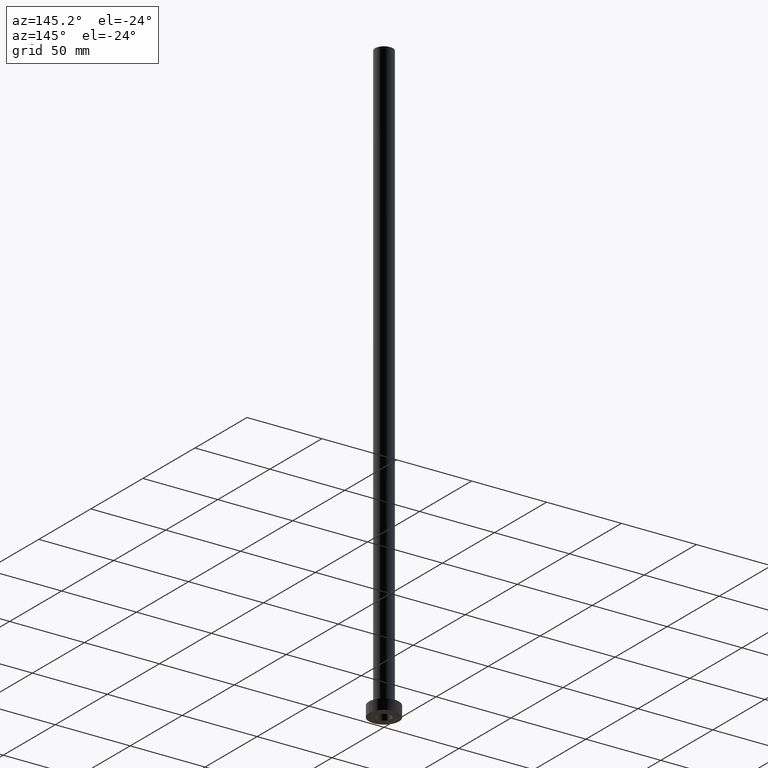
[diagram: clean part render]
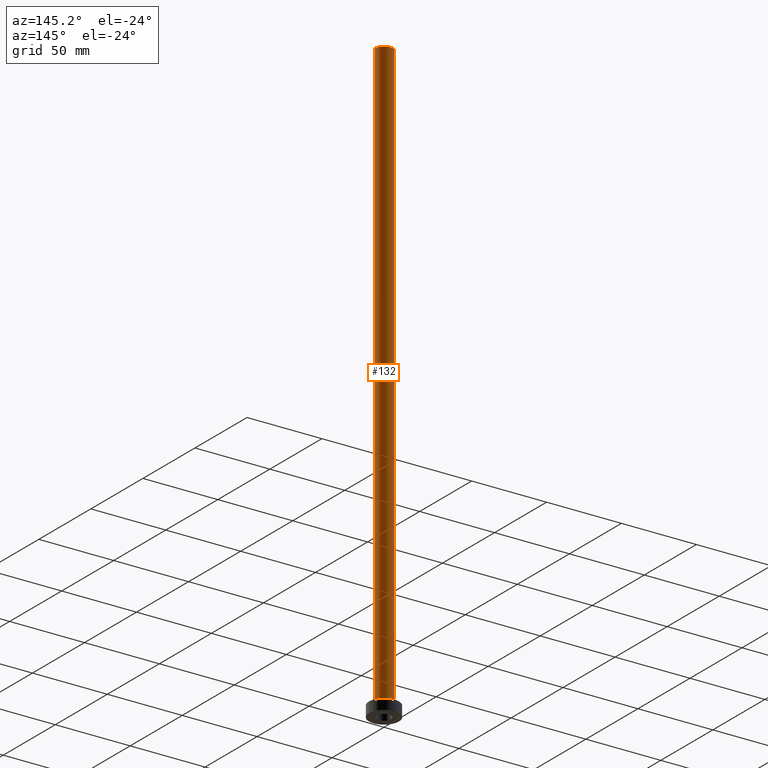
[diagram: same view with one face highlighted and labeled with its STEP entity id]
A machine part, auxiliary view. The second image highlights one B-rep face of the part: STEP entity #132.
In plain terms, the highlighted cylindrical surface (edge-blend (fillet) strip) has radius 6 mm, axis along (-0, -0, -1).
Its self-contained STEP definition (entity closure, byte-faithful):
#3 = EDGE_CURVE ( 'NONE', #295, #27, #314, .T. ) ;
#7 = DIRECTION ( 'NONE',  ( 1.000000000000000000, 0.000000000000000000, 0.000000000000000000 ) ) ;
#27 = VERTEX_POINT ( 'NONE', #184 ) ;
#49 = EDGE_CURVE ( 'NONE', #362, #295, #259, .T. ) ;
#61 = AXIS2_PLACEMENT_3D ( 'NONE', #199, #335, #7 ) ;
#69 = ORIENTED_EDGE ( 'NONE', *, *, #247, .F. ) ;
#88 = EDGE_CURVE ( 'NONE', #362, #122, #364, .T. ) ;
#97 = CARTESIAN_POINT ( 'NONE',  ( 0.000000000000000000, 0.000000000000000000, 400.0000000000000000 ) ) ;
#122 = VERTEX_POINT ( 'NONE', #379 ) ;
#128 = VECTOR ( 'NONE', #273, 1000.000000000000000 ) ;
#131 = CARTESIAN_POINT ( 'NONE',  ( -6.000000000000000888, 0.000000000000000000, 400.0000000000000000 ) ) ;
#132 = ADVANCED_FACE ( 'NONE', ( #446 ), #206, .T. ) ;
#138 = CARTESIAN_POINT ( 'NONE',  ( 0.000000000000000000, 0.000000000000000000, 400.0000000000000000 ) ) ;
#150 = CARTESIAN_POINT ( 'NONE',  ( 6.000000000000000888, 7.347880794884120722E-16, 400.0000000000000000 ) ) ;
#174 = DIRECTION ( 'NONE',  ( 0.000000000000000000, 0.000000000000000000, 1.000000000000000000 ) ) ;
#184 = CARTESIAN_POINT ( 'NONE',  ( -6.000000000000000888, 0.000000000000000000, 7.699999999999985079 ) ) ;
#190 = ORIENTED_EDGE ( 'NONE', *, *, #88, .F. ) ;
#199 = CARTESIAN_POINT ( 'NONE',  ( 0.000000000000000000, 0.000000000000000000, 7.699999999999985079 ) ) ;
#206 = CYLINDRICAL_SURFACE ( 'NONE', #388, 6.000000000000000888 ) ;
#222 = CARTESIAN_POINT ( 'NONE',  ( 6.000000000000000888, 7.347880794884120722E-16, 400.0000000000000000 ) ) ;
#247 = EDGE_CURVE ( 'NONE', #122, #27, #303, .T. ) ;
#258 = AXIS2_PLACEMENT_3D ( 'NONE', #97, #174, #415 ) ;
#259 = LINE ( 'NONE', #222, #411 ) ;
#261 = EDGE_LOOP ( 'NONE', ( #190, #416, #458, #69 ) ) ;
#273 = DIRECTION ( 'NONE',  ( -0.000000000000000000, -0.000000000000000000, -1.000000000000000000 ) ) ;
#295 = VERTEX_POINT ( 'NONE', #317 ) ;
#303 = LINE ( 'NONE', #131, #128 ) ;
#314 = CIRCLE ( 'NONE', #61, 6.000000000000000888 ) ;
#317 = CARTESIAN_POINT ( 'NONE',  ( 6.000000000000000888, 7.347880794884120722E-16, 7.699999999999985079 ) ) ;
#335 = DIRECTION ( 'NONE',  ( 0.000000000000000000, 0.000000000000000000, 1.000000000000000000 ) ) ;
#359 = DIRECTION ( 'NONE',  ( -0.000000000000000000, -0.000000000000000000, -1.000000000000000000 ) ) ;
#362 = VERTEX_POINT ( 'NONE', #150 ) ;
#364 = CIRCLE ( 'NONE', #258, 6.000000000000000888 ) ;
#373 = DIRECTION ( 'NONE',  ( -1.000000000000000000, 0.000000000000000000, 0.000000000000000000 ) ) ;
#379 = CARTESIAN_POINT ( 'NONE',  ( -6.000000000000000888, 0.000000000000000000, 400.0000000000000000 ) ) ;
#388 = AXIS2_PLACEMENT_3D ( 'NONE', #138, #409, #373 ) ;
#409 = DIRECTION ( 'NONE',  ( -0.000000000000000000, -0.000000000000000000, -1.000000000000000000 ) ) ;
#411 = VECTOR ( 'NONE', #359, 1000.000000000000000 ) ;
#415 = DIRECTION ( 'NONE',  ( 1.000000000000000000, 0.000000000000000000, 0.000000000000000000 ) ) ;
#416 = ORIENTED_EDGE ( 'NONE', *, *, #49, .T. ) ;
#446 = FACE_OUTER_BOUND ( 'NONE', #261, .T. ) ;
#458 = ORIENTED_EDGE ( 'NONE', *, *, #3, .T. ) ;